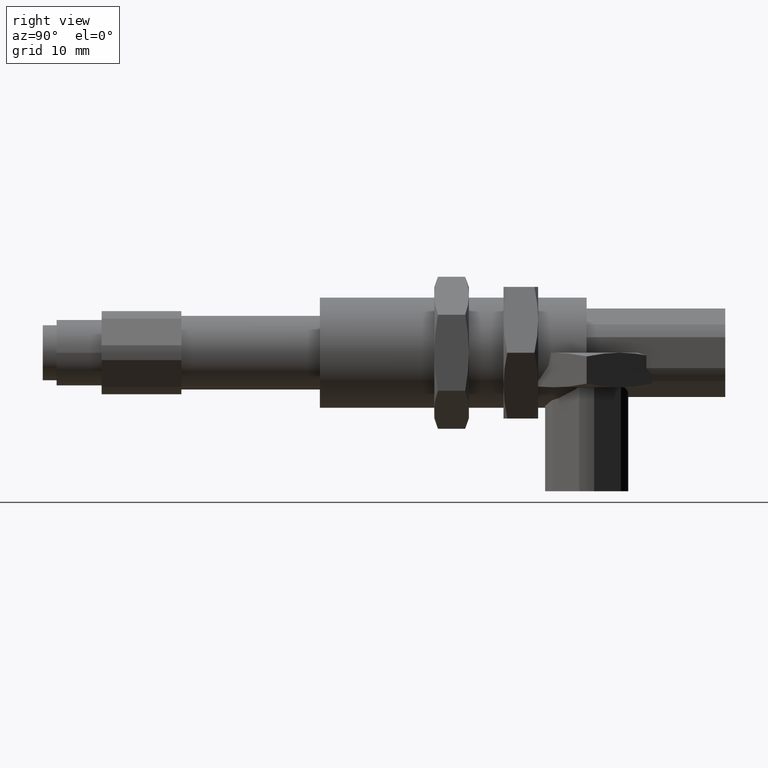
[diagram: clean part render]
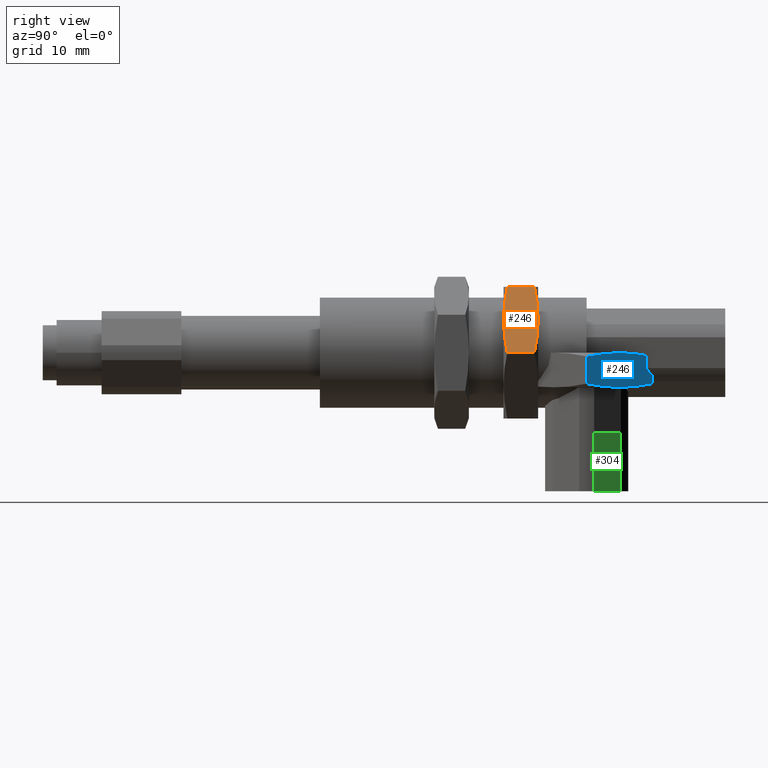
[diagram: same view with three faces highlighted in distinct colors, each labeled with its STEP entity id]
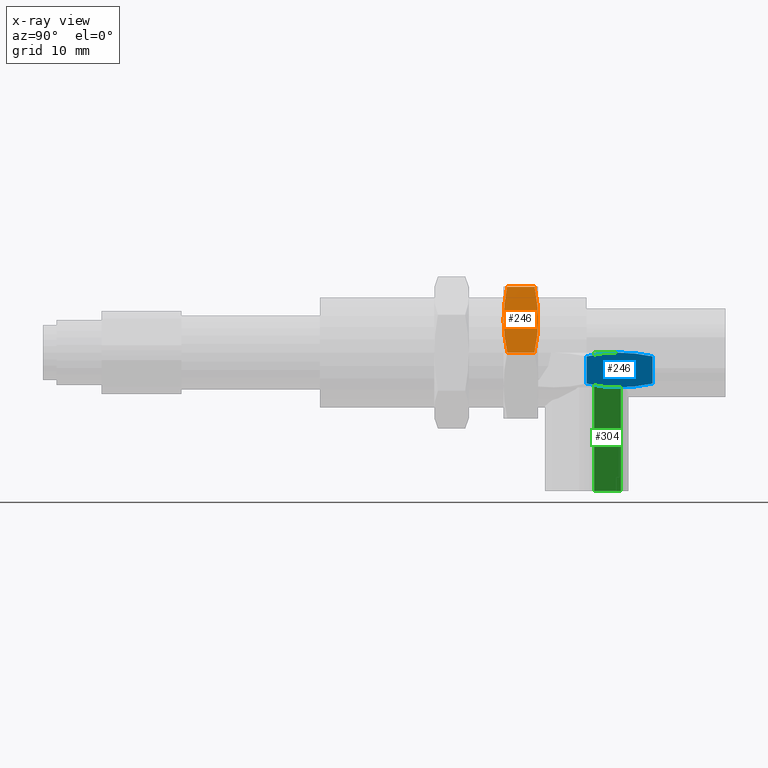
[diagram: x-ray of the same camera — body ghosted, the three highlighted faces saturated]
A machine part, right view with three faces highlighted in distinct colors.
The next image is the same camera in x-ray (body ghosted, the three faces saturated) — at least one of them is partly hidden behind the body in this view.
Their STEP definitions:

[orange] entity #246 — the highlighted planar face has unit normal (0.866, 0, 0.5).
#246 = ADVANCED_FACE( 'NONE', ( #359 ), #360, .T. );
#359 = FACE_OUTER_BOUND( '', #516, .T. );
#360 = PLANE( '', #517 );
#516 = EDGE_LOOP( '', ( #692, #693, #694, #695, #696, #697 ) );
#517 = AXIS2_PLACEMENT_3D( '', #698, #699, #700 );
#692 = ORIENTED_EDGE( '', *, *, #1153, .F. );
#693 = ORIENTED_EDGE( '', *, *, #1154, .T. );
#694 = ORIENTED_EDGE( '', *, *, #1155, .F. );
#695 = ORIENTED_EDGE( '', *, *, #1156, .F. );
#696 = ORIENTED_EDGE( '', *, *, #1157, .F. );
#697 = ORIENTED_EDGE( '', *, *, #1144, .F. );
#698 = CARTESIAN_POINT( '', ( 10.9696551146029, 2.46001835869838E-015, -5.00000000000000 ) );
#699 = DIRECTION( '', ( 0.866025403784439, 0.500000000000000, 0.000000000000000 ) );
#700 = DIRECTION( '', ( 0.000000000000000, 0.000000000000000, -1.00000000000000 ) );
#1144 = EDGE_CURVE( 'NONE', #1298, #1300, #1301, .T. );
#1153 = EDGE_CURVE( 'NONE', #1317, #1298, #1318, .T. );
#1154 = EDGE_CURVE( 'NONE', #1317, #1319, #1320, .T. );
#1155 = EDGE_CURVE( 'NONE', #1312, #1319, #1321, .T. );
#1156 = EDGE_CURVE( 'NONE', #1322, #1312, #1323, .T. );
#1157 = EDGE_CURVE( 'NONE', #1300, #1322, #1324, .T. );
#1298 = VERTEX_POINT( 'NONE', #1516 );
#1300 = VERTEX_POINT( 'NONE', #1518 );
#1301 = B_SPLINE_CURVE_WITH_KNOTS( '', 3, ( #1519, #1520, #1521, #1522, #1523, #1524 ), .UNSPECIFIED., .F., .F., ( 4, 2, 4 ), ( 4.75073589413134E-018, 0.00275542477704446, 0.00551084955408892 ), .UNSPECIFIED. );
#1312 = VERTEX_POINT( 'NONE', #1540 );
#1317 = VERTEX_POINT( 'NONE', #1545 );
#1318 = B_SPLINE_CURVE_WITH_KNOTS( '', 3, ( #1546, #1547, #1548, #1549, #1550, #1551 ), .UNSPECIFIED., .F., .F., ( 4, 2, 4 ), ( 3.87895961444886E-018, 0.00275542477704446, 0.00551084955408892 ), .UNSPECIFIED. );
#1319 = VERTEX_POINT( 'NONE', #1552 );
#1320 = LINE( '', #1553, #1554 );
#1321 = B_SPLINE_CURVE_WITH_KNOTS( '', 3, ( #1555, #1556, #1557, #1558, #1559, #1560 ), .UNSPECIFIED., .F., .F., ( 4, 2, 4 ), ( 4.69761021110831E-018, 0.00275542477704447, 0.00551084955408893 ), .UNSPECIFIED. );
#1322 = VERTEX_POINT( 'NONE', #1561 );
#1323 = B_SPLINE_CURVE_WITH_KNOTS( '', 3, ( #1562, #1563, #1564, #1565, #1566, #1567 ), .UNSPECIFIED., .F., .F., ( 4, 2, 4 ), ( 4.29490295294321E-019, 0.00275542477704447, 0.00551084955408893 ), .UNSPECIFIED. );
#1324 = LINE( '', #1568, #1569 );
#1516 = CARTESIAN_POINT( '', ( 8.22724133595217, 4.75000000000000, -5.00000000000000 ) );
#1518 = CARTESIAN_POINT( '', ( 10.9696551146029, 3.00560544944727E-015, -4.46508928364747 ) );
#1519 = CARTESIAN_POINT( '', ( 8.22724133595218, 4.75000000000000, -5.00000000000000 ) );
#1520 = CARTESIAN_POINT( '', ( 8.68865758666873, 3.95080361032100, -5.00000000000000 ) );
#1521 = CARTESIAN_POINT( '', ( 9.14764552227072, 3.15581318579720, -4.95020144763976 ) );
#1522 = CARTESIAN_POINT( '', ( 10.0614448307321, 1.57306635562077, -4.76495368861374 ) );
#1523 = CARTESIAN_POINT( '', ( 10.5162853587487, 0.785259451754591, -4.63010237989494 ) );
#1524 = CARTESIAN_POINT( '', ( 10.9696551146029, 1.51868998053034E-015, -4.46508928364747 ) );
#1540 = CARTESIAN_POINT( '', ( 8.22724133595217, 4.75000000000000, -4.92217440151123E-016 ) );
#1545 = CARTESIAN_POINT( '', ( 5.48482755730145, 9.50000000000000, -4.46508928364747 ) );
#1546 = CARTESIAN_POINT( '', ( 5.48482755730146, 9.50000000000000, -4.46508928364747 ) );
#1547 = CARTESIAN_POINT( '', ( 5.93819731315567, 8.71474054824541, -4.63010237989494 ) );
#1548 = CARTESIAN_POINT( '', ( 6.39303784117226, 7.92693364437923, -4.76495368861374 ) );
#1549 = CARTESIAN_POINT( '', ( 7.30683714963364, 6.34418681420280, -4.95020144763976 ) );
#1550 = CARTESIAN_POINT( '', ( 7.76582508523563, 5.54919638967900, -5.00000000000000 ) );
#1551 = CARTESIAN_POINT( '', ( 8.22724133595218, 4.75000000000000, -5.00000000000000 ) );
#1552 = CARTESIAN_POINT( '', ( 5.48482755730145, 9.50000000000000, -0.534910716352535 ) );
#1553 = CARTESIAN_POINT( '', ( 5.48482755730144, 9.50000000000000, -5.00000000000000 ) );
#1554 = VECTOR( '', #1931, 1000.00000000000 );
#1555 = CARTESIAN_POINT( '', ( 8.22724133595218, 4.75000000000000, -7.46019700072649E-016 ) );
#1556 = CARTESIAN_POINT( '', ( 7.76582508523563, 5.54919638967900, -5.83182184184586E-016 ) );
#1557 = CARTESIAN_POINT( '', ( 7.30683714963364, 6.34418681420280, -0.0497985523602341 ) );
#1558 = CARTESIAN_POINT( '', ( 6.39303784117225, 7.92693364437923, -0.235046311386264 ) );
#1559 = CARTESIAN_POINT( '', ( 5.93819731315567, 8.71474054824541, -0.369897620105069 ) );
#1560 = CARTESIAN_POINT( '', ( 5.48482755730146, 9.50000000000000, -0.534910716352537 ) );
#1561 = CARTESIAN_POINT( '', ( 10.9696551146029, 1.88191799086446E-015, -0.534910716352538 ) );
#1562 = CARTESIAN_POINT( '', ( 10.9696551146029, 1.30381762303053E-015, -0.534910716352538 ) );
#1563 = CARTESIAN_POINT( '', ( 10.5162853587487, 0.785259451754592, -0.369897620105070 ) );
#1564 = CARTESIAN_POINT( '', ( 10.0614448307321, 1.57306635562078, -0.235046311386263 ) );
#1565 = CARTESIAN_POINT( '', ( 9.14764552227071, 3.15581318579721, -0.0497985523602331 ) );
#1566 = CARTESIAN_POINT( '', ( 8.68865758666873, 3.95080361032100, -1.26546722319792E-015 ) );
#1567 = CARTESIAN_POINT( '', ( 8.22724133595218, 4.75000000000000, -1.09981326558516E-015 ) );
#1568 = CARTESIAN_POINT( '', ( 10.9696551146029, 2.46001835869838E-015, -5.00000000000000 ) );
#1569 = VECTOR( '', #1932, 1000.00000000000 );
#1931 = DIRECTION( '', ( 0.000000000000000, 0.000000000000000, 1.00000000000000 ) );
#1932 = DIRECTION( '', ( 0.000000000000000, 0.000000000000000, 1.00000000000000 ) );

[blue] entity #246 — the highlighted planar face has unit normal (0.866, 0.5, 0).
#246 = ADVANCED_FACE( 'NONE', ( #359 ), #360, .T. );
#359 = FACE_OUTER_BOUND( '', #516, .T. );
#360 = PLANE( '', #517 );
#516 = EDGE_LOOP( '', ( #692, #693, #694, #695, #696, #697 ) );
#517 = AXIS2_PLACEMENT_3D( '', #698, #699, #700 );
#692 = ORIENTED_EDGE( '', *, *, #1153, .F. );
#693 = ORIENTED_EDGE( '', *, *, #1154, .T. );
#694 = ORIENTED_EDGE( '', *, *, #1155, .F. );
#695 = ORIENTED_EDGE( '', *, *, #1156, .F. );
#696 = ORIENTED_EDGE( '', *, *, #1157, .F. );
#697 = ORIENTED_EDGE( '', *, *, #1144, .F. );
#698 = CARTESIAN_POINT( '', ( 10.9696551146029, 2.46001835869838E-015, -5.00000000000000 ) );
#699 = DIRECTION( '', ( 0.866025403784439, 0.500000000000000, 0.000000000000000 ) );
#700 = DIRECTION( '', ( 0.000000000000000, 0.000000000000000, -1.00000000000000 ) );
#1144 = EDGE_CURVE( 'NONE', #1298, #1300, #1301, .T. );
#1153 = EDGE_CURVE( 'NONE', #1317, #1298, #1318, .T. );
#1154 = EDGE_CURVE( 'NONE', #1317, #1319, #1320, .T. );
#1155 = EDGE_CURVE( 'NONE', #1312, #1319, #1321, .T. );
#1156 = EDGE_CURVE( 'NONE', #1322, #1312, #1323, .T. );
#1157 = EDGE_CURVE( 'NONE', #1300, #1322, #1324, .T. );
#1298 = VERTEX_POINT( 'NONE', #1516 );
#1300 = VERTEX_POINT( 'NONE', #1518 );
#1301 = B_SPLINE_CURVE_WITH_KNOTS( '', 3, ( #1519, #1520, #1521, #1522, #1523, #1524 ), .UNSPECIFIED., .F., .F., ( 4, 2, 4 ), ( 4.75073589413134E-018, 0.00275542477704446, 0.00551084955408892 ), .UNSPECIFIED. );
#1312 = VERTEX_POINT( 'NONE', #1540 );
#1317 = VERTEX_POINT( 'NONE', #1545 );
#1318 = B_SPLINE_CURVE_WITH_KNOTS( '', 3, ( #1546, #1547, #1548, #1549, #1550, #1551 ), .UNSPECIFIED., .F., .F., ( 4, 2, 4 ), ( 3.87895961444886E-018, 0.00275542477704446, 0.00551084955408892 ), .UNSPECIFIED. );
#1319 = VERTEX_POINT( 'NONE', #1552 );
#1320 = LINE( '', #1553, #1554 );
#1321 = B_SPLINE_CURVE_WITH_KNOTS( '', 3, ( #1555, #1556, #1557, #1558, #1559, #1560 ), .UNSPECIFIED., .F., .F., ( 4, 2, 4 ), ( 4.69761021110831E-018, 0.00275542477704447, 0.00551084955408893 ), .UNSPECIFIED. );
#1322 = VERTEX_POINT( 'NONE', #1561 );
#1323 = B_SPLINE_CURVE_WITH_KNOTS( '', 3, ( #1562, #1563, #1564, #1565, #1566, #1567 ), .UNSPECIFIED., .F., .F., ( 4, 2, 4 ), ( 4.29490295294321E-019, 0.00275542477704447, 0.00551084955408893 ), .UNSPECIFIED. );
#1324 = LINE( '', #1568, #1569 );
#1516 = CARTESIAN_POINT( '', ( 8.22724133595217, 4.75000000000000, -5.00000000000000 ) );
#1518 = CARTESIAN_POINT( '', ( 10.9696551146029, 3.00560544944727E-015, -4.46508928364747 ) );
#1519 = CARTESIAN_POINT( '', ( 8.22724133595218, 4.75000000000000, -5.00000000000000 ) );
#1520 = CARTESIAN_POINT( '', ( 8.68865758666873, 3.95080361032100, -5.00000000000000 ) );
#1521 = CARTESIAN_POINT( '', ( 9.14764552227072, 3.15581318579720, -4.95020144763976 ) );
#1522 = CARTESIAN_POINT( '', ( 10.0614448307321, 1.57306635562077, -4.76495368861374 ) );
#1523 = CARTESIAN_POINT( '', ( 10.5162853587487, 0.785259451754591, -4.63010237989494 ) );
#1524 = CARTESIAN_POINT( '', ( 10.9696551146029, 1.51868998053034E-015, -4.46508928364747 ) );
#1540 = CARTESIAN_POINT( '', ( 8.22724133595217, 4.75000000000000, -4.92217440151123E-016 ) );
#1545 = CARTESIAN_POINT( '', ( 5.48482755730145, 9.50000000000000, -4.46508928364747 ) );
#1546 = CARTESIAN_POINT( '', ( 5.48482755730146, 9.50000000000000, -4.46508928364747 ) );
#1547 = CARTESIAN_POINT( '', ( 5.93819731315567, 8.71474054824541, -4.63010237989494 ) );
#1548 = CARTESIAN_POINT( '', ( 6.39303784117226, 7.92693364437923, -4.76495368861374 ) );
#1549 = CARTESIAN_POINT( '', ( 7.30683714963364, 6.34418681420280, -4.95020144763976 ) );
#1550 = CARTESIAN_POINT( '', ( 7.76582508523563, 5.54919638967900, -5.00000000000000 ) );
#1551 = CARTESIAN_POINT( '', ( 8.22724133595218, 4.75000000000000, -5.00000000000000 ) );
#1552 = CARTESIAN_POINT( '', ( 5.48482755730145, 9.50000000000000, -0.534910716352535 ) );
#1553 = CARTESIAN_POINT( '', ( 5.48482755730144, 9.50000000000000, -5.00000000000000 ) );
#1554 = VECTOR( '', #1931, 1000.00000000000 );
#1555 = CARTESIAN_POINT( '', ( 8.22724133595218, 4.75000000000000, -7.46019700072649E-016 ) );
#1556 = CARTESIAN_POINT( '', ( 7.76582508523563, 5.54919638967900, -5.83182184184586E-016 ) );
#1557 = CARTESIAN_POINT( '', ( 7.30683714963364, 6.34418681420280, -0.0497985523602341 ) );
#1558 = CARTESIAN_POINT( '', ( 6.39303784117225, 7.92693364437923, -0.235046311386264 ) );
#1559 = CARTESIAN_POINT( '', ( 5.93819731315567, 8.71474054824541, -0.369897620105069 ) );
#1560 = CARTESIAN_POINT( '', ( 5.48482755730146, 9.50000000000000, -0.534910716352537 ) );
#1561 = CARTESIAN_POINT( '', ( 10.9696551146029, 1.88191799086446E-015, -0.534910716352538 ) );
#1562 = CARTESIAN_POINT( '', ( 10.9696551146029, 1.30381762303053E-015, -0.534910716352538 ) );
#1563 = CARTESIAN_POINT( '', ( 10.5162853587487, 0.785259451754592, -0.369897620105070 ) );
#1564 = CARTESIAN_POINT( '', ( 10.0614448307321, 1.57306635562078, -0.235046311386263 ) );
#1565 = CARTESIAN_POINT( '', ( 9.14764552227071, 3.15581318579721, -0.0497985523602331 ) );
#1566 = CARTESIAN_POINT( '', ( 8.68865758666873, 3.95080361032100, -1.26546722319792E-015 ) );
#1567 = CARTESIAN_POINT( '', ( 8.22724133595218, 4.75000000000000, -1.09981326558516E-015 ) );
#1568 = CARTESIAN_POINT( '', ( 10.9696551146029, 2.46001835869838E-015, -5.00000000000000 ) );
#1569 = VECTOR( '', #1932, 1000.00000000000 );
#1931 = DIRECTION( '', ( 0.000000000000000, 0.000000000000000, 1.00000000000000 ) );
#1932 = DIRECTION( '', ( 0.000000000000000, 0.000000000000000, 1.00000000000000 ) );

[green] entity #304 — the highlighted planar face has unit normal (0.866, 0.5, 0).
#304 = ADVANCED_FACE( 'NONE', ( #493 ), #494, .T. );
#493 = FACE_OUTER_BOUND( '', #650, .T. );
#494 = PLANE( '', #651 );
#650 = EDGE_LOOP( '', ( #1112, #1113, #1114, #1115 ) );
#651 = AXIS2_PLACEMENT_3D( '', #1116, #1117, #1118 );
#1112 = ORIENTED_EDGE( '', *, *, #1265, .F. );
#1113 = ORIENTED_EDGE( '', *, *, #1245, .F. );
#1114 = ORIENTED_EDGE( '', *, *, #1260, .F. );
#1115 = ORIENTED_EDGE( '', *, *, #1270, .T. );
#1116 = CARTESIAN_POINT( '', ( 6.92820323027551, 7.11563971917264E-015, -20.0000000000000 ) );
#1117 = DIRECTION( '', ( 0.866025403784439, 0.500000000000000, 0.000000000000000 ) );
#1118 = DIRECTION( '', ( 0.000000000000000, 0.000000000000000, -1.00000000000000 ) );
#1245 = EDGE_CURVE( 'NONE', #1469, #1471, #1472, .T. );
#1260 = EDGE_CURVE( 'NONE', #1495, #1469, #1497, .T. );
#1265 = EDGE_CURVE( 'NONE', #1471, #1504, #1505, .T. );
#1270 = EDGE_CURVE( 'NONE', #1495, #1504, #1512, .T. );
#1469 = VERTEX_POINT( 'NONE', #1843 );
#1471 = VERTEX_POINT( 'NONE', #1845 );
#1472 = LINE( '', #1846, #1847 );
#1495 = VERTEX_POINT( 'NONE', #1877 );
#1497 = LINE( '', #1879, #1880 );
#1504 = VERTEX_POINT( 'NONE', #1890 );
#1505 = LINE( '', #1891, #1892 );
#1512 = LINE( '', #1901, #1902 );
#1843 = CARTESIAN_POINT( '', ( 6.30970529527264, 1.07126984780141, 0.000000000000000 ) );
#1845 = CARTESIAN_POINT( '', ( 4.08259955014062, 4.92873015219860, 0.000000000000000 ) );
#1846 = CARTESIAN_POINT( '', ( 6.92820323027551, 7.11563971917264E-015, 0.000000000000000 ) );
#1847 = VECTOR( '', #2069, 1000.00000000000 );
#1877 = CARTESIAN_POINT( '', ( 6.30970529527264, 1.07126984780141, -20.0000000000000 ) );
#1879 = CARTESIAN_POINT( '', ( 6.30970529527264, 1.07126984780141, 0.000000000000000 ) );
#1880 = VECTOR( '', #2098, 1000.00000000000 );
#1890 = CARTESIAN_POINT( '', ( 4.08259955014062, 4.92873015219859, -20.0000000000000 ) );
#1891 = CARTESIAN_POINT( '', ( 4.08259955014062, 4.92873015219859, 0.000000000000000 ) );
#1892 = VECTOR( '', #2105, 1000.00000000000 );
#1901 = CARTESIAN_POINT( '', ( 6.92820323027551, 7.11563971917264E-015, -20.0000000000000 ) );
#1902 = VECTOR( '', #2114, 1000.00000000000 );
#2069 = DIRECTION( '', ( -0.500000000000000, 0.866025403784439, 0.000000000000000 ) );
#2098 = DIRECTION( '', ( 0.000000000000000, 0.000000000000000, 1.00000000000000 ) );
#2105 = DIRECTION( '', ( 0.000000000000000, 0.000000000000000, -1.00000000000000 ) );
#2114 = DIRECTION( '', ( -0.500000000000000, 0.866025403784439, 0.000000000000000 ) );